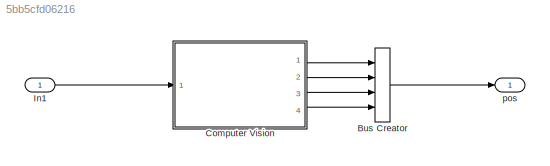
MODEL slx_5bb5cfd06216
KIND model
BLOCK [BusCreator] Bus Creator
  DisplayOption = bar
  OutDataTypeStr = Bus: PositionBus
  Ports = [4, 1]
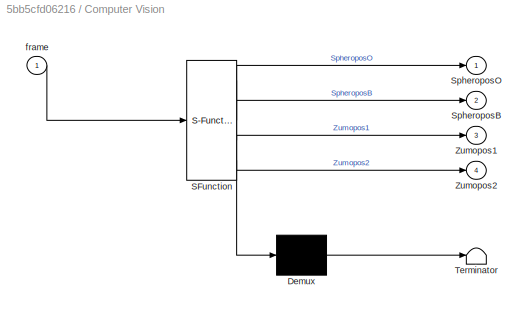
BLOCK [SubSystem] Computer Vision
  ErrorFcn = Stateflow.Translate.translate
  PermitHierarchicalResolution = ExplicitOnly
  Ports = [1, 4]
  RequestExecContextInheritance = off
  SFBlockType = MATLAB Function
  TreatAsAtomicUnit = on
BLOCK [Demux] Computer Vision/ Demux 
  Outputs = 1
  Ports = [1, 1]
BLOCK [S-Function] Computer Vision/ SFunction 
  EnableBusSupport = on
  FunctionName = sf_sfun
  PortCounts = [1 5]
  Ports = [1, 5]
  Tag = Stateflow S-Function processCamera 2
BLOCK [Terminator] Computer Vision/ Terminator 
BLOCK [Outport] Computer Vision/SpheroposB
  IconDisplay = Port number
  Port = 2
BLOCK [Outport] Computer Vision/SpheroposO
  IconDisplay = Port number
BLOCK [Outport] Computer Vision/Zumopos1
  IconDisplay = Port number
  Port = 3
BLOCK [Outport] Computer Vision/Zumopos2
  IconDisplay = Port number
  Port = 4
BLOCK [Inport] Computer Vision/frame
  IconDisplay = Port number
BLOCK [Inport] In1
  IconDisplay = Port number
BLOCK [Outport] pos
  IconDisplay = Port number
  OutDataTypeStr = Bus: PositionBus
LINE Bus Creator:1 -> pos:1
LINE Computer Vision:1 -> Bus Creator:1
LINE Computer Vision:2 -> Bus Creator:2
LINE Computer Vision:3 -> Bus Creator:3
LINE Computer Vision:4 -> Bus Creator:4
LINE In1:1 -> Computer Vision:1
CHART Computer Vision states=1 transitions=1
  STATE_LABEL 'eML_blk_kernel()'
  STATE_LABEL "SCRIPT:\nfunction [SpheroposO, SpheroposB, Zumopos1, Zumopos2] = fcn(frame)\n%#codegen\n\ncoder.extrinsic('trackTwoMinions')\n\nZumopos1 = single([0; 0]);\nZumopos2 = single([0; 0]);\nSpheroposO = [0; 0];\nSpheroposB = [0; 0];\nZumopos = zeros(2, 'single');\n\n\n[Zumopos, SpheroposO, SpheroposB] = trackTwoMinions(frame, 0);\n\nZumopos1 = Zumopos(1, :)';\nZumopos2 = Zumopos(2, :)';\n\n\n    \n\n\n\n\n\n\n\n"
